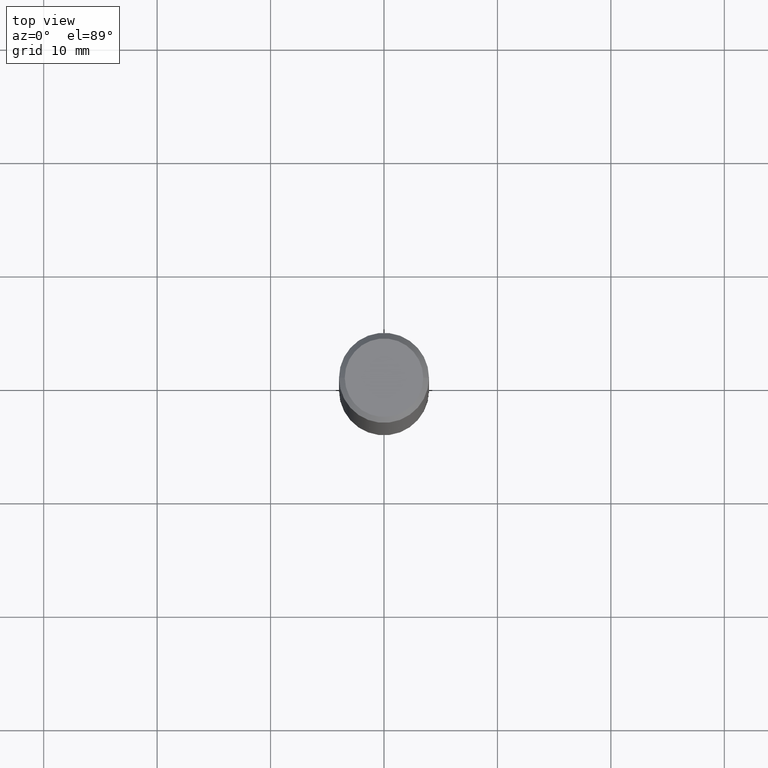
[diagram: clean part render]
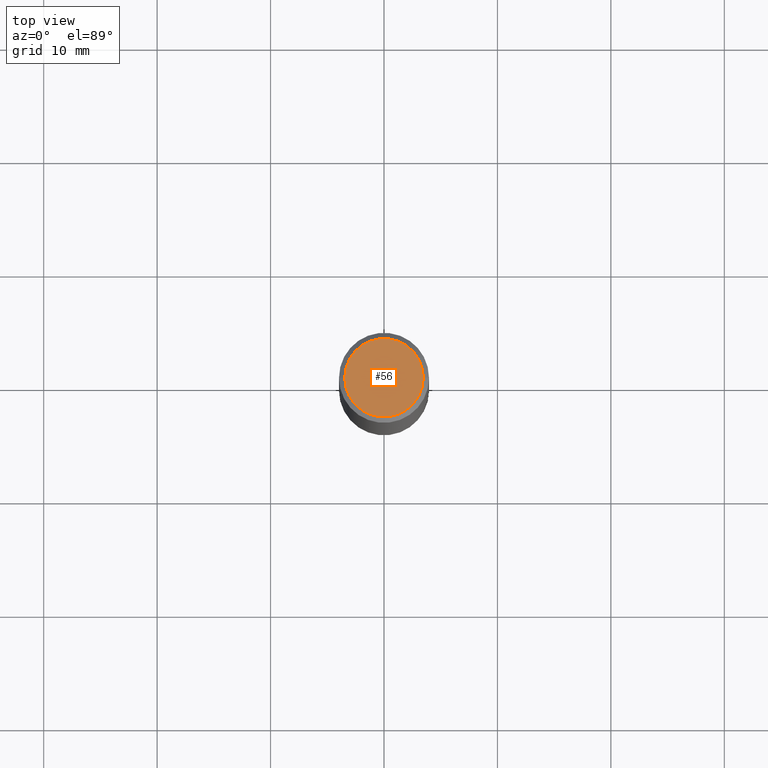
[diagram: same view with one face highlighted and labeled with its STEP entity id]
A machine part, top view. The second image highlights one B-rep face of the part: STEP entity #56.
In plain terms, the highlighted planar face has unit normal (0, -0, -1).
Its self-contained STEP definition (entity closure, byte-faithful):
#26 = DIRECTION ( 'NONE',  ( 1.000000000000000000, -6.982962677686266711E-15, 4.876388394912423252E-29 ) ) ;
#28 = DIRECTION ( 'NONE',  ( -1.000000000000000000, 6.982962677686265922E-15, -4.876176775795935793E-29 ) ) ;
#32 = EDGE_LOOP ( 'NONE', ( #156, #211 ) ) ;
#56 = ADVANCED_FACE ( 'NONE', ( #234 ), #321, .F. ) ;
#76 = AXIS2_PLACEMENT_3D ( 'NONE', #294, #120, #165 ) ;
#91 = CARTESIAN_POINT ( 'NONE',  ( 0.1362499999999998712, -1.038262645562517138E-15, 4.268512490107368508E-18 ) ) ;
#107 = VERTEX_POINT ( 'NONE', #335 ) ;
#120 = DIRECTION ( 'NONE',  ( -2.445468806185136597E-29, 3.491481338843145583E-15, 1.000000000000000000 ) ) ;
#145 = AXIS2_PLACEMENT_3D ( 'NONE', #194, #241, #26 ) ;
#156 = ORIENTED_EDGE ( 'NONE', *, *, #298, .T. ) ;
#165 = DIRECTION ( 'NONE',  ( 1.000000000000000000, -6.982962677686266711E-15, 4.876388394912423252E-29 ) ) ;
#194 = CARTESIAN_POINT ( 'NONE',  ( -1.043851414335219820E-46, 1.490343170380447200E-32, 4.268512490100411279E-18 ) ) ;
#211 = ORIENTED_EDGE ( 'NONE', *, *, #348, .T. ) ;
#212 = VERTEX_POINT ( 'NONE', #91 ) ;
#234 = FACE_OUTER_BOUND ( 'NONE', #32, .T. ) ;
#241 = DIRECTION ( 'NONE',  ( -2.445468806185136597E-29, 3.491481338843145583E-15, 1.000000000000000000 ) ) ;
#265 = CARTESIAN_POINT ( 'NONE',  ( 9.514286648347529716E-16, 0.1362499999999998712, -4.735800761723279488E-16 ) ) ;
#275 = DIRECTION ( 'NONE',  ( 2.438088387897960049E-29, -3.491481338843145188E-15, -1.000000000000000000 ) ) ;
#294 = CARTESIAN_POINT ( 'NONE',  ( -1.043851414335219820E-46, 1.490343170380447200E-32, 4.268512490100411279E-18 ) ) ;
#298 = EDGE_CURVE ( 'NONE', #107, #212, #301, .T. ) ;
#301 = CIRCLE ( 'NONE', #76, 0.1362499999999998712 ) ;
#319 = CIRCLE ( 'NONE', #145, 0.1362499999999998712 ) ;
#321 = PLANE ( 'NONE',  #336 ) ;
#335 = CARTESIAN_POINT ( 'NONE',  ( -0.1362499999999998712, 9.863434782231840290E-16, 4.268512490093635087E-18 ) ) ;
#336 = AXIS2_PLACEMENT_3D ( 'NONE', #265, #275, #28 ) ;
#348 = EDGE_CURVE ( 'NONE', #212, #107, #319, .T. ) ;